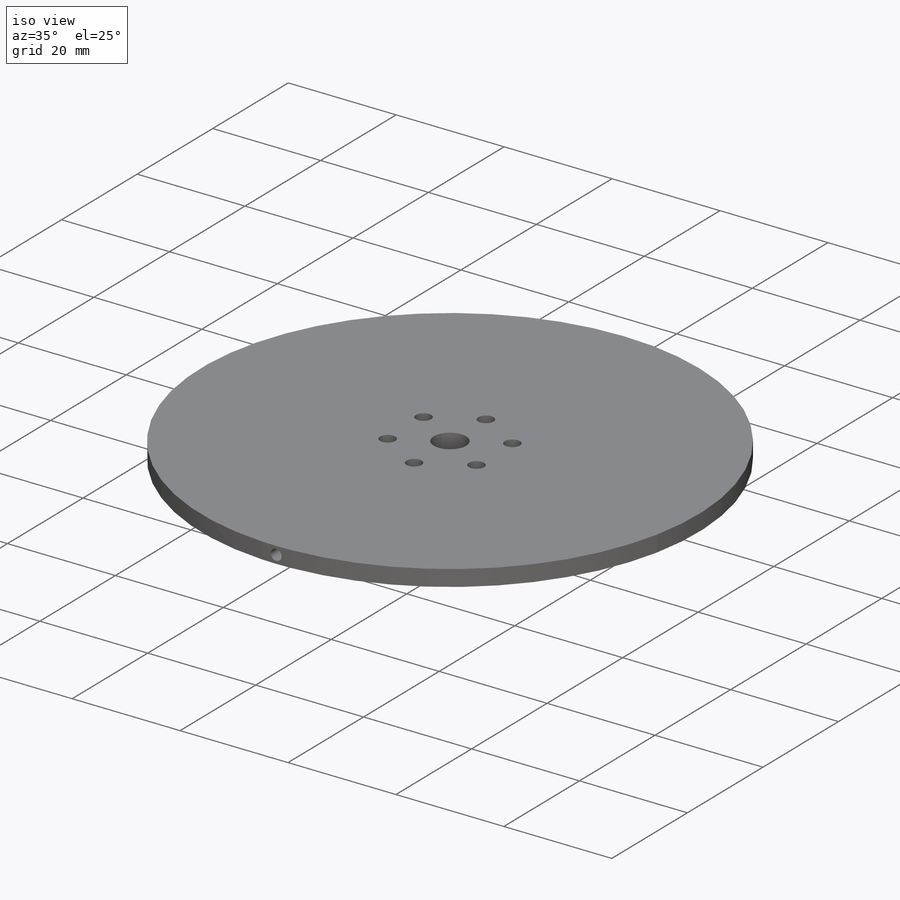
[diagram: iso view]
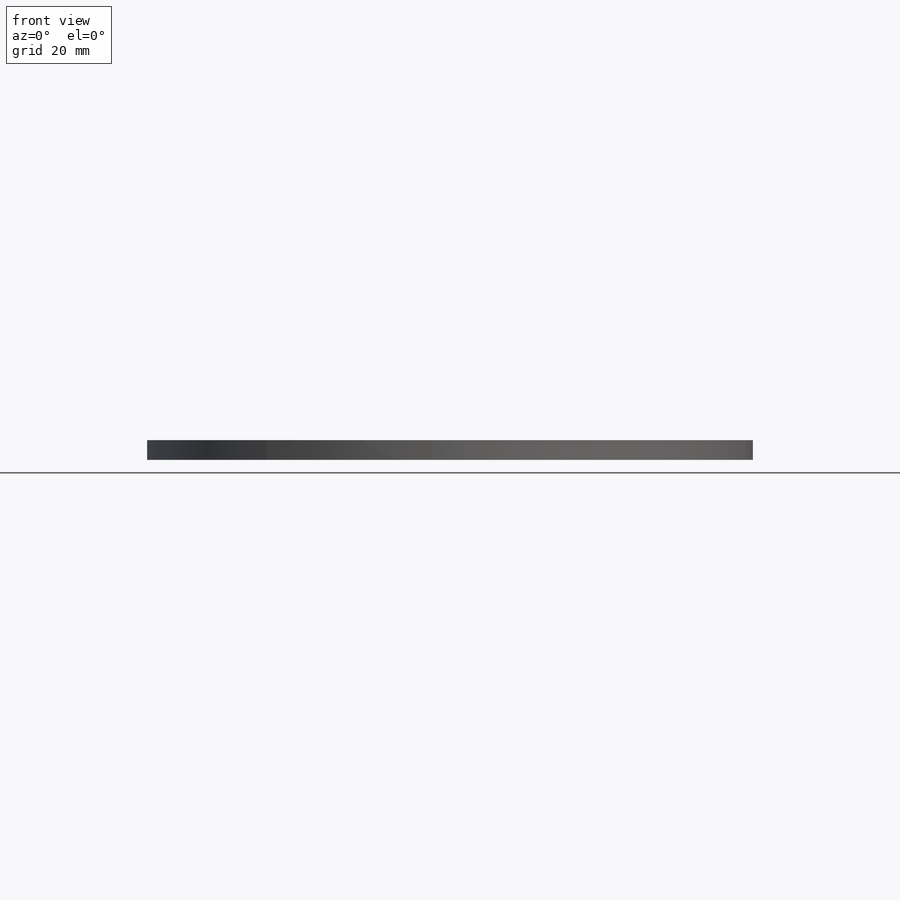
[diagram: front view]
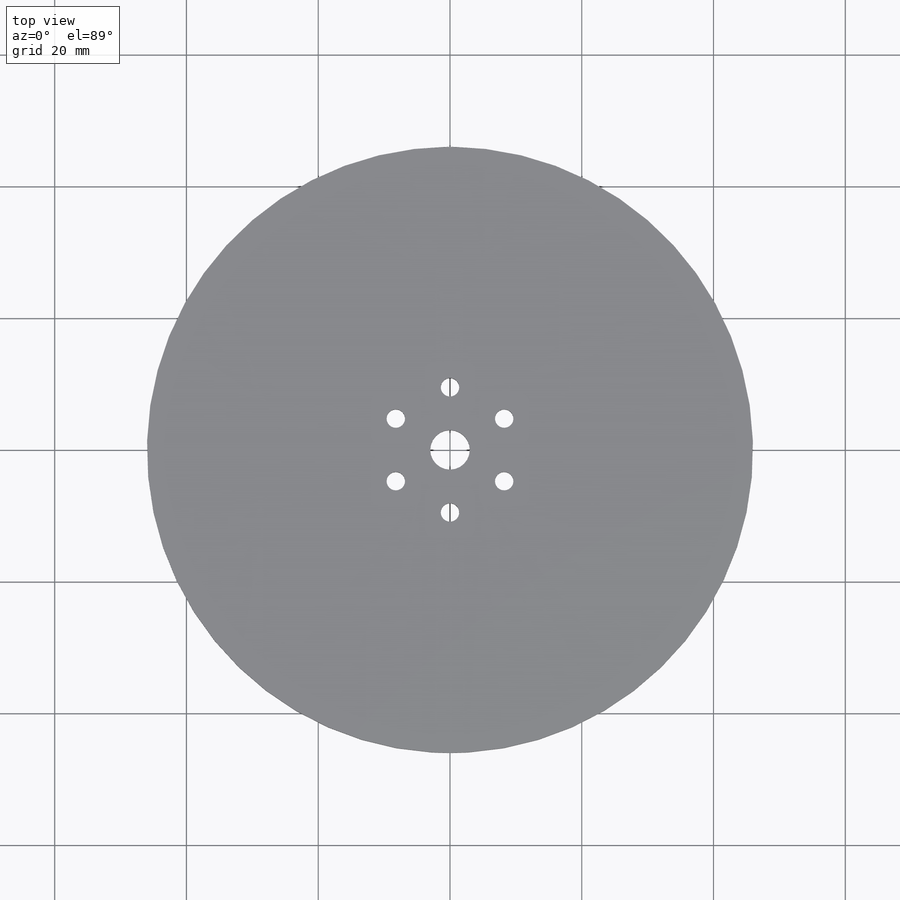
[diagram: top view]
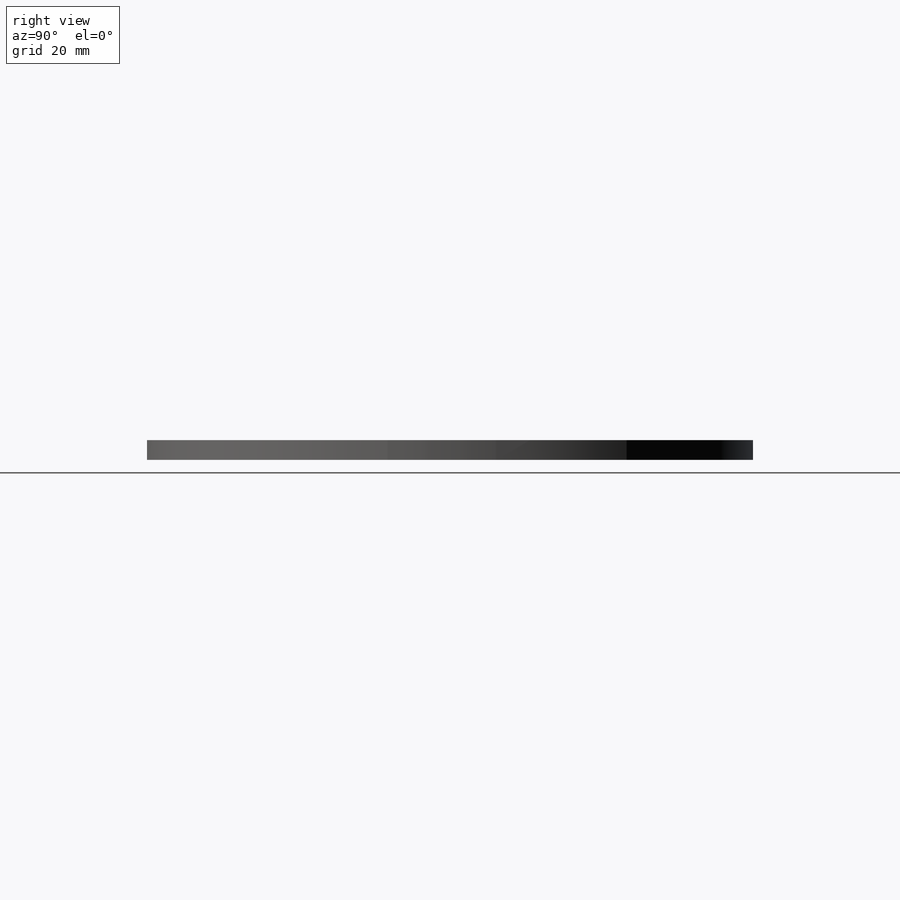
[diagram: right view]
SOLIDWORKS PART (.sldprt)
format: sldprt  version: not decoded by parser v0  size: 160,768 bytes
history: native  units: mm
features: sketch x3, plane x2, cut_extrude x2, material x1, extrude x1 (+12 scaffold rows collapsed)
feature tree (21):
  scaffold x12  (default folders/planes/origin — collapsed)
  material  "1060 Alloy"
  sketch  "Sketch1"  dims[D1=92.0mm D2=6.0mm D3=19.0mm D4=2.8mm D5=6.0]
  extrude  "Boss-Extrude1"  Depth=3mm
  plane  "Plane2"  Offset=46mm
  sketch  "Sketch5"  dims[c1.D2=2.0mm c1.D1=1.5mm c2.D2=~21.344795mm]
  cut_extrude  "Cut-Extrude1"  Depth=3mm
  plane  "Plane3"  Offset=46mm
  sketch  "Sketch6"  dims[c1.D2=2.0mm c1.D1=1.5mm c2.D2=~0.24961mm]
  cut_extrude  "Cut-Extrude2"  Depth=3mm
decode coverage: 6 of 6 modeling features carry decoded parameters
note: ~ marks probable driven/reference dimensions
note: suppression state not decoded; provenance and decode notes live in map.json
